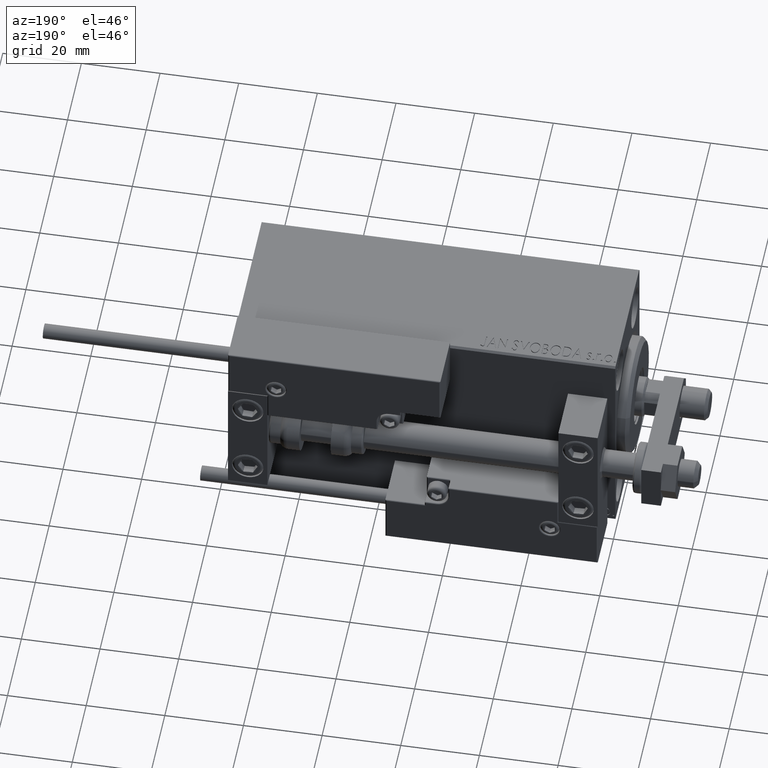
[diagram: clean part render]
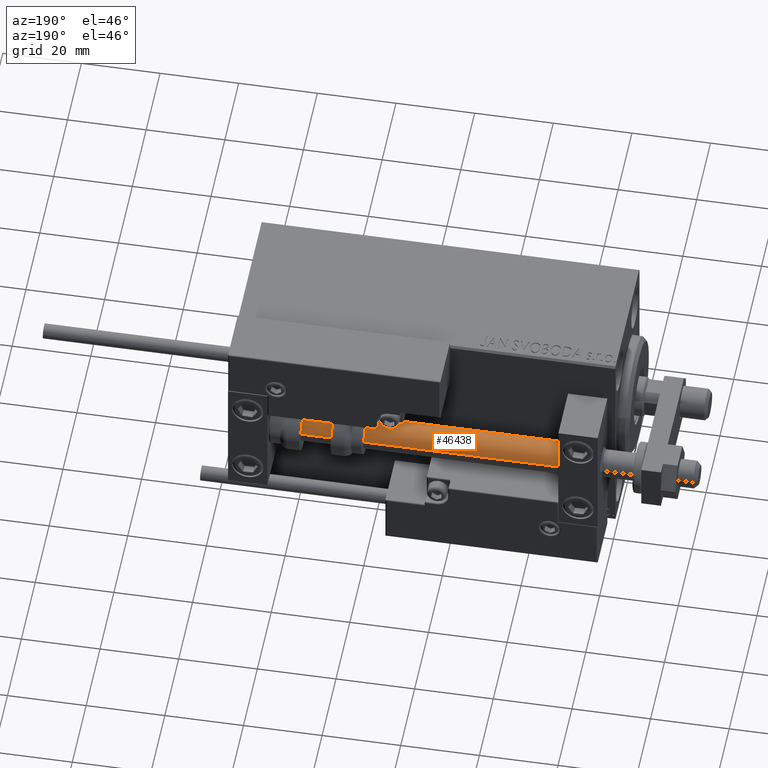
[diagram: same view with one face highlighted and labeled with its STEP entity id]
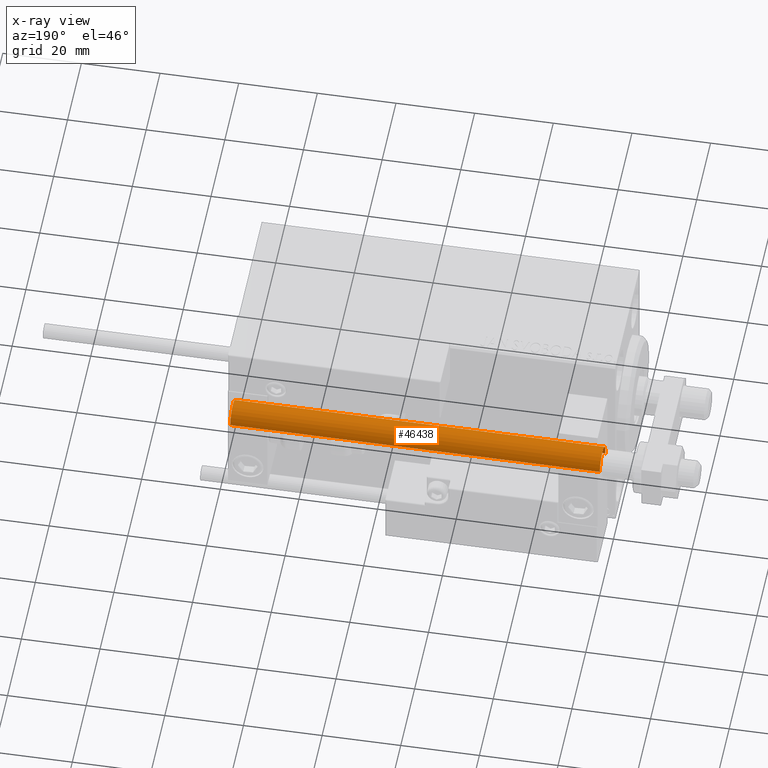
[diagram: x-ray of the same camera — body ghosted, the highlighted face saturated]
A machine part, auxiliary view. The second image highlights one B-rep face of the part: STEP entity #46438.
The next image is the same camera in x-ray: the body ghosted, the highlighted face saturated — about 0% of this face is hidden behind the body in this view.
In plain terms, the highlighted cylindrical surface (edge-blend (fillet) strip) has radius 4 mm, axis along (-1, 0, 0).
Its self-contained STEP definition (entity closure, byte-faithful):
#1722 = CARTESIAN_POINT ( 'NONE',  ( 4.000000000000000000, 4.898587196589412829E-16, 96.00000000000000000 ) ) ;
#5148 = ORIENTED_EDGE ( 'NONE', *, *, #16129, .T. ) ;
#5844 = DIRECTION ( 'NONE',  ( 0.000000000000000000, 0.000000000000000000, 1.000000000000000000 ) ) ;
#6789 = DIRECTION ( 'NONE',  ( -0.000000000000000000, -0.000000000000000000, -1.000000000000000000 ) ) ;
#9513 = EDGE_CURVE ( 'NONE', #44651, #38904, #47750, .T. ) ;
#10299 = VERTEX_POINT ( 'NONE', #38386 ) ;
#11408 = ORIENTED_EDGE ( 'NONE', *, *, #37773, .T. ) ;
#12854 = VERTEX_POINT ( 'NONE', #30033 ) ;
#13267 = AXIS2_PLACEMENT_3D ( 'NONE', #25384, #5844, #41594 ) ;
#14086 = VECTOR ( 'NONE', #26178, 1000.000000000000000 ) ;
#14284 = CARTESIAN_POINT ( 'NONE',  ( 0.000000000000000000, 0.000000000000000000, 96.00000000000000000 ) ) ;
#14774 = LINE ( 'NONE', #26845, #29092 ) ;
#14789 = CYLINDRICAL_SURFACE ( 'NONE', #28192, 4.000000000000000000 ) ;
#16129 = EDGE_CURVE ( 'NONE', #10299, #12854, #40576, .T. ) ;
#18625 = FACE_OUTER_BOUND ( 'NONE', #31532, .T. ) ;
#19454 = CARTESIAN_POINT ( 'NONE',  ( 0.000000000000000000, 0.000000000000000000, 2.000000000000029310 ) ) ;
#25384 = CARTESIAN_POINT ( 'NONE',  ( 0.000000000000000000, 0.000000000000000000, 96.00000000000000000 ) ) ;
#26099 = DIRECTION ( 'NONE',  ( -0.000000000000000000, -0.000000000000000000, -1.000000000000000000 ) ) ;
#26178 = DIRECTION ( 'NONE',  ( -0.000000000000000000, -0.000000000000000000, -1.000000000000000000 ) ) ;
#26845 = CARTESIAN_POINT ( 'NONE',  ( 4.000000000000000000, 4.898587196589412829E-16, 96.00000000000000000 ) ) ;
#27895 = EDGE_CURVE ( 'NONE', #38904, #12854, #41876, .T. ) ;
#28192 = AXIS2_PLACEMENT_3D ( 'NONE', #14284, #26099, #46403 ) ;
#29092 = VECTOR ( 'NONE', #6789, 1000.000000000000000 ) ;
#30033 = CARTESIAN_POINT ( 'NONE',  ( -4.000000000000000000, 0.000000000000000000, 2.000000000000029310 ) ) ;
#31532 = EDGE_LOOP ( 'NONE', ( #39003, #11408, #5148, #33874 ) ) ;
#31540 = AXIS2_PLACEMENT_3D ( 'NONE', #19454, #50570, #46479 ) ;
#33874 = ORIENTED_EDGE ( 'NONE', *, *, #27895, .F. ) ;
#37521 = CARTESIAN_POINT ( 'NONE',  ( -4.000000000000000000, 0.000000000000000000, 96.00000000000000000 ) ) ;
#37773 = EDGE_CURVE ( 'NONE', #44651, #10299, #14774, .T. ) ;
#38386 = CARTESIAN_POINT ( 'NONE',  ( 4.000000000000000000, 4.898587196589412829E-16, 2.000000000000029310 ) ) ;
#38904 = VERTEX_POINT ( 'NONE', #45826 ) ;
#39003 = ORIENTED_EDGE ( 'NONE', *, *, #9513, .F. ) ;
#40576 = CIRCLE ( 'NONE', #31540, 4.000000000000000000 ) ;
#41594 = DIRECTION ( 'NONE',  ( 1.000000000000000000, 0.000000000000000000, 0.000000000000000000 ) ) ;
#41876 = LINE ( 'NONE', #37521, #14086 ) ;
#44651 = VERTEX_POINT ( 'NONE', #1722 ) ;
#45826 = CARTESIAN_POINT ( 'NONE',  ( -4.000000000000000000, 0.000000000000000000, 96.00000000000000000 ) ) ;
#46403 = DIRECTION ( 'NONE',  ( -1.000000000000000000, 0.000000000000000000, 0.000000000000000000 ) ) ;
#46438 = ADVANCED_FACE ( 'NONE', ( #18625 ), #14789, .T. ) ;
#46479 = DIRECTION ( 'NONE',  ( 1.000000000000000000, 0.000000000000000000, 0.000000000000000000 ) ) ;
#47750 = CIRCLE ( 'NONE', #13267, 4.000000000000000000 ) ;
#50570 = DIRECTION ( 'NONE',  ( -0.000000000000000000, -0.000000000000000000, 1.000000000000000000 ) ) ;